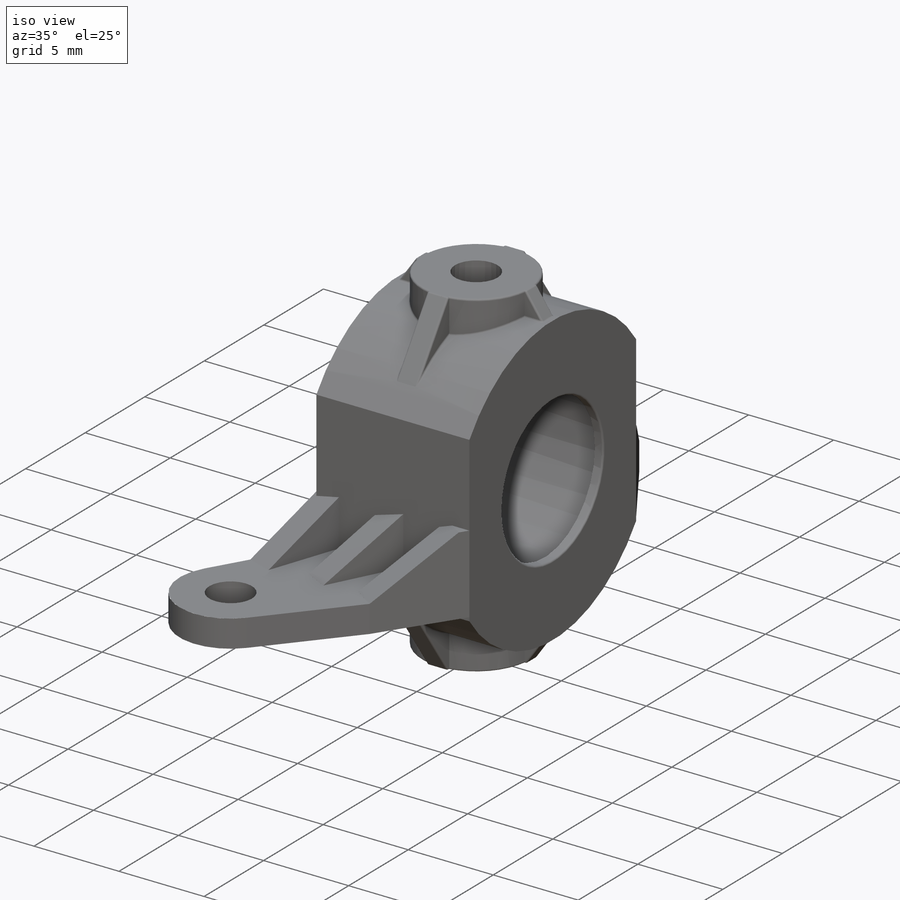
[diagram: iso view]
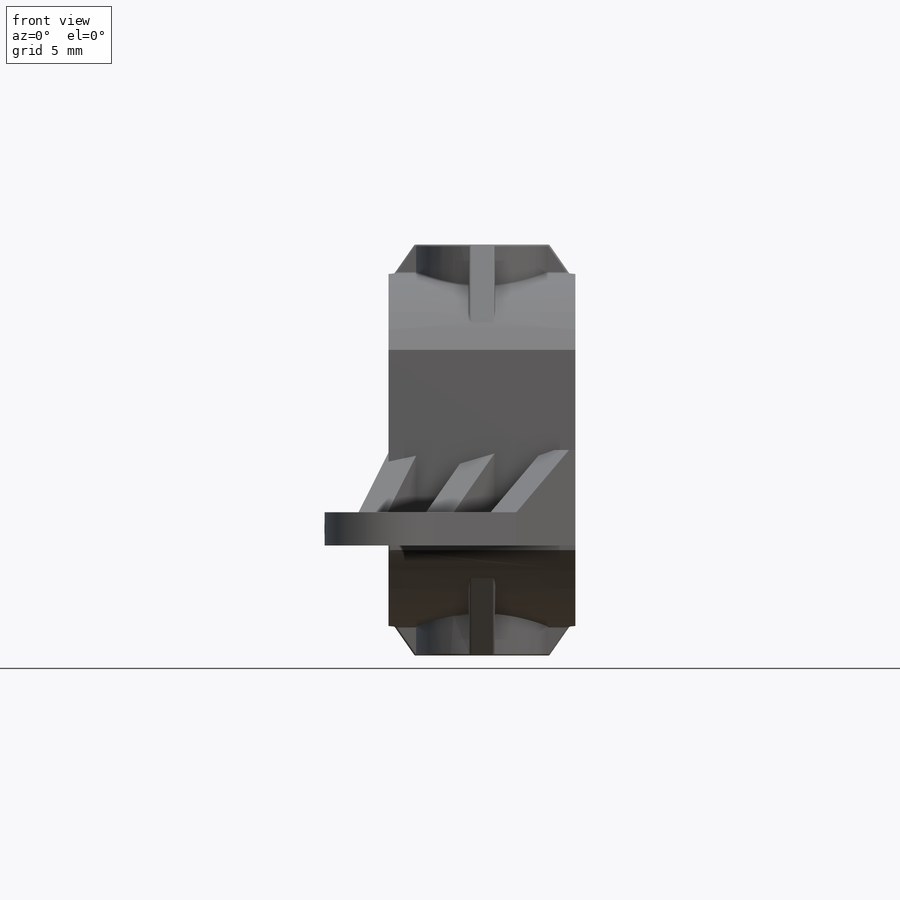
[diagram: front view]
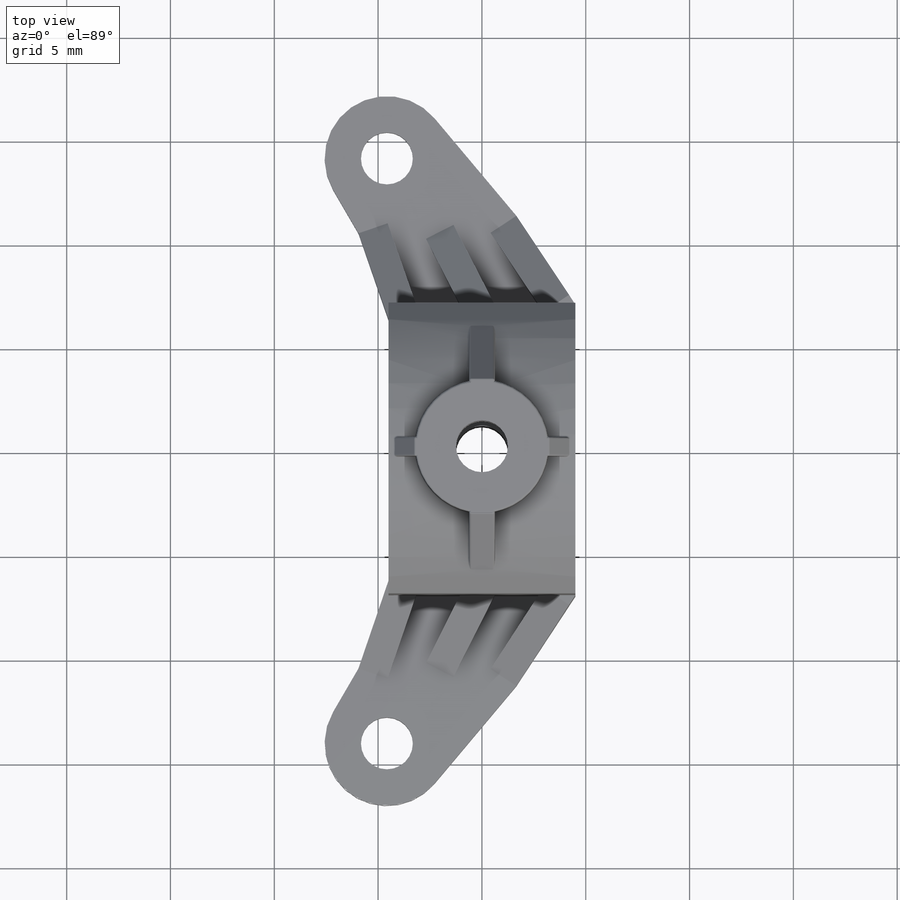
[diagram: top view]
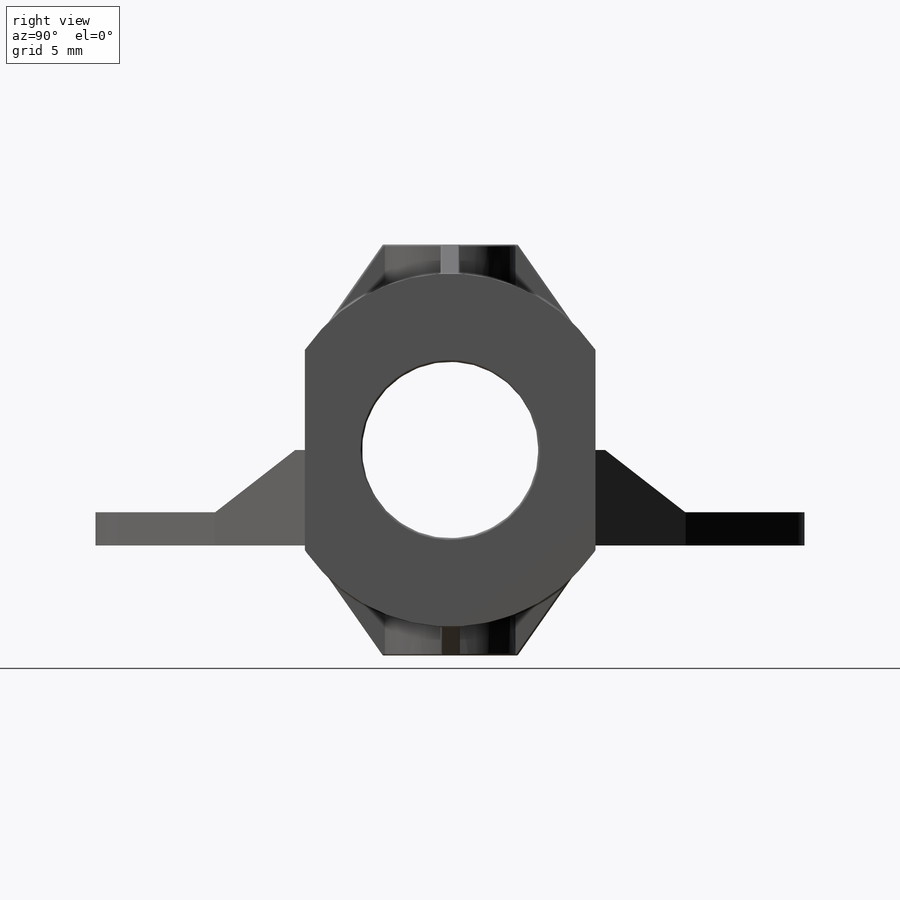
[diagram: right view]
SOLIDWORKS PART (.sldprt)
format: sldprt  version: not decoded by parser v0  size: 925,696 bytes
history: native  units: mm
features: sketch x14, cut_extrude x5, chamfer x5, extrude x4, mirror x3, fillet x2, material x1, revolve x1, hole x1, thread x1 (+11 scaffold rows collapsed)
feature tree (48):
  scaffold x11  (default folders/planes/origin — collapsed)
  material  "ABS"
  sketch  "Sketch1"  dims[c1.D1=8.5mm c1.D4=12.0mm c1.D2=17.0mm c1.D3=14.0mm c1.D5=~4.521568mm c2.D5=27.0deg c2.D6=~10.820539mm c3.D6=27.0deg]
  extrude  "Boss-Extrude1"  Depth=5mm
  cut_extrude  "Cut-Extrude3"  [1 undecoded]
  sketch  "Sketch1<3>"  dims[D1=11.0mm D2=4.0mm]
  sketch  "Sketch2"  dims[D1=6.5mm D2=0.9mm D3=7.0mm D4=2.9mm]
  revolve  "Revolve1"  Angle=360deg
  sketch  "Sketch3"  dims[D1=2.0mm D2=9.0mm D3=14.0mm]
  cut_extrude  "Cut-Extrude2"  [1 undecoded]
  fillet  "Fillet4"  Radius=0.2mm
  sketch  "Sketch7"  dims[c1.D2=3.0mm c1.D1=~14.26806mm c2.D1=72.0deg]
  extrude  "Boss-Extrude2"  Depth=4.6mm
  sketch  "Sketch8"
  sketch  "Sketch9"  dims[D1=0.4mm]
  cut_extrude  "Cut-Extrude4"  Depth=0.3mm
  cut_extrude  "Cut-Extrude5"  Depth=3mm
  sketch  "Sketch10"  dims[D1=2.5mm]
  cut_extrude  "Cut-Extrude6"  [1 undecoded]
  mirror  "Mirror2"
  sketch  "Sketch21"
  chamfer  "Chamfer3"  Distance=4.619mm Angle=33deg
  sketch  "Sketch13"
  extrude  "Boss-Extrude3"  Depth=4.5mm
  extrude  "Boss-Extrude4"  [1 undecoded]
  sketch  "Sketch13<5>"  dims[D1=2.5mm]
  mirror  "Mirror1"
  chamfer  "Chamfer4"  Distance=3mm Angle=55deg
  chamfer  "Chamfer5"  Distance=3mm Angle=55deg
  chamfer  "Chamfer6"  Distance=1.2mm Angle=55deg
  chamfer  "Chamfer7"  Distance=1.2mm Angle=55deg
  fillet  "Fillet12"  Radius=0.1mm
  sketch  "Sketch16"
  hole  "M3x0.5 Tapped Hole2"  [1 undecoded]
  sketch  "Sketch19"
  thread  "Hole Thread1"  Diameter=4.131653mm  [1 undecoded]
  sketch  "Sketch18"  dims[hole-wizard template sketch: 47 standard entries collapsed; hole parameters kept: c15.Tap Drill Depth=5.0mm c15.D3=~14.816244mm c15.Drill Angle=118.0deg]
  mirror  "Mirror3"
decode coverage: 23 of 36 modeling features carry decoded parameters
note: ~ marks probable driven/reference dimensions
note: 6 parameter values undecoded
summary: no parameter record found for 5 features
note: suppression state not decoded; provenance and decode notes live in map.json
